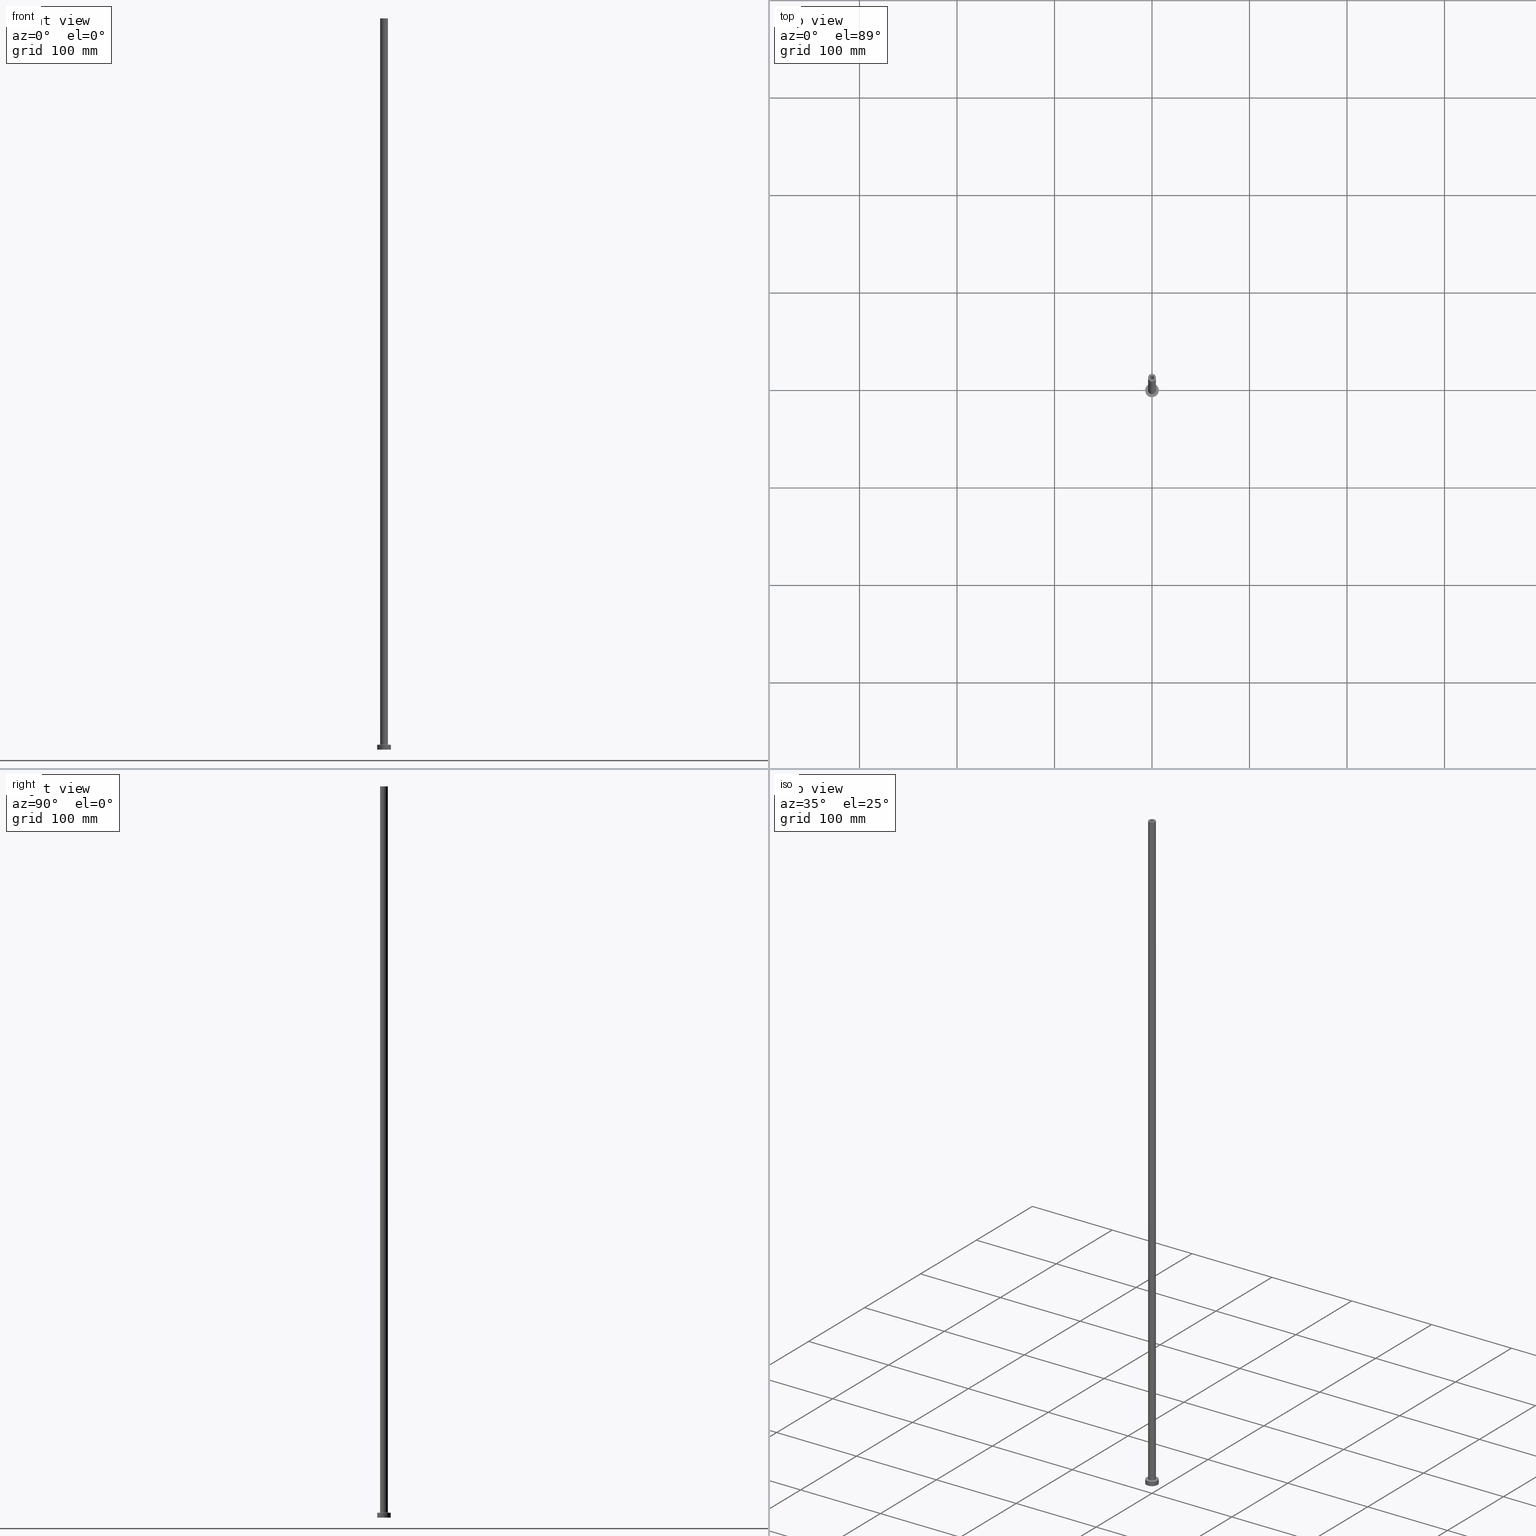
[diagram: canonical four-view strip — front | top / right | iso, engineering-drawing reading convention]
A machine part, canonical four-view strip (front | top / right | iso — engineering-drawing reading convention). The complete STEP part file that produces these views, byte-faithful:
ISO-10303-21;
HEADER;
FILE_DESCRIPTION (( 'STEP AP203' ),
    '1' );
FILE_NAME ('b233.STEP',
    '2023-02-13T17:29:18',
    ( '' ),
    ( '' ),
    'SwSTEP 2.0',
    'SolidWorks 2019',
    '' );
FILE_SCHEMA (( 'CONFIG_CONTROL_DESIGN' ));
ENDSEC;

DATA;
#1 = CARTESIAN_POINT ( 'NONE',  ( -4.000000000000000000, 0.000000000000000000, 750.0000000000000000 ) ) ;
#2 =( LENGTH_UNIT ( ) NAMED_UNIT ( * ) SI_UNIT ( .MILLI., .METRE. ) );
#3 = VECTOR ( 'NONE', #27, 1000.000000000000000 ) ;
#4 = ORIENTED_EDGE ( 'NONE', *, *, #289, .T. ) ;
#5 = CARTESIAN_POINT ( 'NONE',  ( 0.000000000000000000, 0.000000000000000000, 750.0000000000000000 ) ) ;
#6 = VERTEX_POINT ( 'NONE', #357 ) ;
#7 = EDGE_CURVE ( 'NONE', #142, #239, #150, .T. ) ;
#8 = AXIS2_PLACEMENT_3D ( 'NONE', #406, #13, #397 ) ;
#9 = VERTEX_POINT ( 'NONE', #180 ) ;
#10 = CARTESIAN_POINT ( 'NONE',  ( 0.000000000000000000, 0.000000000000000000, 705.0000000000000000 ) ) ;
#11 = ORIENTED_EDGE ( 'NONE', *, *, #430, .T. ) ;
#12 = CALENDAR_DATE ( 2023, 13, 2 ) ;
#13 = DIRECTION ( 'NONE',  ( 0.000000000000000000, 0.000000000000000000, -1.000000000000000000 ) ) ;
#14 = ORIENTED_EDGE ( 'NONE', *, *, #215, .T. ) ;
#15 = EDGE_CURVE ( 'NONE', #134, #222, #253, .T. ) ;
#16 = APPROVAL_STATUS ( 'not_yet_approved' ) ;
#17 = CIRCLE ( 'NONE', #304, 4.500000000000000888 ) ;
#18 = DIRECTION ( 'NONE',  ( 0.000000000000000000, 0.000000000000000000, 1.000000000000000000 ) ) ;
#19 = ORIENTED_EDGE ( 'NONE', *, *, #219, .F. ) ;
#20 = UNCERTAINTY_MEASURE_WITH_UNIT (LENGTH_MEASURE( 1.000000000000000082E-05 ), #2, 'distance_accuracy_value', 'NONE');
#21 = PERSON_AND_ORGANIZATION_ROLE ( 'creator' ) ;
#22 = DIRECTION ( 'NONE',  ( 1.000000000000000000, 0.000000000000000000, -0.000000000000000000 ) ) ;
#23 = CARTESIAN_POINT ( 'NONE',  ( -7.000000000000000000, 0.000000000000000000, 5.000000000000000000 ) ) ;
#24 = AXIS2_PLACEMENT_3D ( 'NONE', #156, #441, #243 ) ;
#25 = ORIENTED_EDGE ( 'NONE', *, *, #430, .F. ) ;
#26 = DIRECTION ( 'NONE',  ( -0.000000000000000000, -0.000000000000000000, -1.000000000000000000 ) ) ;
#27 = DIRECTION ( 'NONE',  ( -0.000000000000000000, -0.000000000000000000, -1.000000000000000000 ) ) ;
#28 = DATE_AND_TIME ( #206, #252 ) ;
#29 = CC_DESIGN_SECURITY_CLASSIFICATION ( #189, ( #241 ) ) ;
#30 = DIRECTION ( 'NONE',  ( -0.000000000000000000, -0.000000000000000000, -1.000000000000000000 ) ) ;
#31 = LINE ( 'NONE', #170, #261 ) ;
#32 = VECTOR ( 'NONE', #367, 1000.000000000000000 ) ;
#33 = ORIENTED_EDGE ( 'NONE', *, *, #329, .F. ) ;
#34 = EDGE_CURVE ( 'NONE', #345, #197, #182, .T. ) ;
#35 = DIRECTION ( 'NONE',  ( 0.000000000000000000, -1.000000000000000000, 0.000000000000000000 ) ) ;
#36 = VERTEX_POINT ( 'NONE', #178 ) ;
#37 = CIRCLE ( 'NONE', #305, 2.250000000000000000 ) ;
#38 = ORIENTED_EDGE ( 'NONE', *, *, #149, .F. ) ;
#39 = ORIENTED_EDGE ( 'NONE', *, *, #47, .F. ) ;
#40 = ORIENTED_EDGE ( 'NONE', *, *, #404, .F. ) ;
#41 = APPROVAL_DATE_TIME ( #140, #237 ) ;
#42 = CIRCLE ( 'NONE', #313, 4.000000000000000000 ) ;
#43 = DIRECTION ( 'NONE',  ( 0.000000000000000000, 0.000000000000000000, 1.000000000000000000 ) ) ;
#44 = CARTESIAN_POINT ( 'NONE',  ( 2.100000000000000089, 2.571758278209441957E-16, 750.0000000000000000 ) ) ;
#45 = APPLICATION_PROTOCOL_DEFINITION ( 'international standard', 'config_control_design', 1994, #340 ) ;
#46 = AXIS2_PLACEMENT_3D ( 'NONE', #187, #328, #432 ) ;
#47 = EDGE_CURVE ( 'NONE', #239, #202, #426, .T. ) ;
#48 = CARTESIAN_POINT ( 'NONE',  ( 0.000000000000000000, 0.000000000000000000, 5.000000000000000000 ) ) ;
#49 = ADVANCED_FACE ( 'NONE', ( #147 ), #229, .F. ) ;
#50 = VECTOR ( 'NONE', #270, 1000.000000000000000 ) ;
#51 = DIRECTION ( 'NONE',  ( 1.000000000000000000, 0.000000000000000000, 0.000000000000000000 ) ) ;
#52 = CYLINDRICAL_SURFACE ( 'NONE', #356, 2.100000000000000089 ) ;
#53 = DIRECTION ( 'NONE',  ( 1.000000000000000000, 0.000000000000000000, -0.000000000000000000 ) ) ;
#54 = ADVANCED_FACE ( 'NONE', ( #400 ), #268, .T. ) ;
#55 = ORIENTED_EDGE ( 'NONE', *, *, #181, .T. ) ;
#56 = APPROVAL_STATUS ( 'not_yet_approved' ) ;
#57 = DATE_AND_TIME ( #12, #68 ) ;
#58 = AXIS2_PLACEMENT_3D ( 'NONE', #230, #93, #364 ) ;
#59 = LINE ( 'NONE', #370, #32 ) ;
#60 = VERTEX_POINT ( 'NONE', #402 ) ;
#61 = APPROVAL ( #56, 'NEUR�EN�' ) ;
#62 = DIRECTION ( 'NONE',  ( 0.000000000000000000, 0.000000000000000000, 1.000000000000000000 ) ) ;
#63 = CARTESIAN_POINT ( 'NONE',  ( 0.000000000000000000, 0.000000000000000000, 705.0000000000000000 ) ) ;
#64 = ORIENTED_EDGE ( 'NONE', *, *, #7, .F. ) ;
#65 = ORIENTED_EDGE ( 'NONE', *, *, #88, .T. ) ;
#66 = FACE_OUTER_BOUND ( 'NONE', #456, .T. ) ;
#67 = AXIS2_PLACEMENT_3D ( 'NONE', #102, #224, #391 ) ;
#68 = LOCAL_TIME ( 18, 29, 18.00000000000000000, #332 ) ;
#69 = EDGE_LOOP ( 'NONE', ( #401, #19 ) ) ;
#70 = VERTEX_POINT ( 'NONE', #398 ) ;
#71 = PRODUCT_RELATED_PRODUCT_CATEGORY ( 'detail', '', ( #245 ) ) ;
#72 = VECTOR ( 'NONE', #450, 1000.000000000000000 ) ;
#73 = AXIS2_PLACEMENT_3D ( 'NONE', #428, #80, #223 ) ;
#74 = CC_DESIGN_DATE_AND_TIME_ASSIGNMENT ( #438, #115, ( #244 ) ) ;
#75 = EDGE_LOOP ( 'NONE', ( #77, #375 ) ) ;
#76 = VECTOR ( 'NONE', #259, 1000.000000000000000 ) ;
#77 = ORIENTED_EDGE ( 'NONE', *, *, #329, .T. ) ;
#78 = AXIS2_PLACEMENT_3D ( 'NONE', #286, #431, #319 ) ;
#79 = APPROVAL_PERSON_ORGANIZATION ( #110, #61, #193 ) ;
#80 = DIRECTION ( 'NONE',  ( 0.000000000000000000, 0.000000000000000000, 1.000000000000000000 ) ) ;
#81 = APPLICATION_PROTOCOL_DEFINITION ( 'international standard', 'config_control_design', 1994, #155 ) ;
#82 = DIRECTION ( 'NONE',  ( 0.000000000000000000, 0.000000000000000000, -1.000000000000000000 ) ) ;
#83 = COORDINATED_UNIVERSAL_TIME_OFFSET ( 1, 0, .AHEAD. ) ;
#84 = FACE_OUTER_BOUND ( 'NONE', #442, .T. ) ;
#85 = PERSON_AND_ORGANIZATION ( #393, #137 ) ;
#86 = LINE ( 'NONE', #433, #50 ) ;
#87 = CC_DESIGN_PERSON_AND_ORGANIZATION_ASSIGNMENT ( #263, #443, ( #241 ) ) ;
#88 = EDGE_CURVE ( 'NONE', #142, #250, #59, .T. ) ;
#89 = CARTESIAN_POINT ( 'NONE',  ( 0.000000000000000000, 0.000000000000000000, 750.0000000000000000 ) ) ;
#90 = AXIS2_PLACEMENT_3D ( 'NONE', #105, #255, #362 ) ;
#91 = CARTESIAN_POINT ( 'NONE',  ( 0.000000000000000000, 0.000000000000000000, 5.499999999999949374 ) ) ;
#92 = AXIS2_PLACEMENT_3D ( 'NONE', #359, #317, #384 ) ;
#93 = DIRECTION ( 'NONE',  ( 0.000000000000000000, 0.000000000000000000, 1.000000000000000000 ) ) ;
#94 = EDGE_LOOP ( 'NONE', ( #192, #235, #33, #458 ) ) ;
#95 = DIRECTION ( 'NONE',  ( -1.000000000000000000, 0.000000000000000000, 0.000000000000000000 ) ) ;
#96 = DIRECTION ( 'NONE',  ( 0.000000000000000000, 0.000000000000000000, 1.000000000000000000 ) ) ;
#97 = AXIS2_PLACEMENT_3D ( 'NONE', #366, #435, #22 ) ;
#98 = EDGE_CURVE ( 'NONE', #197, #6, #347, .T. ) ;
#99 = CARTESIAN_POINT ( 'NONE',  ( 0.000000000000000000, 0.000000000000000000, 5.000000000000000000 ) ) ;
#100 = ORIENTED_EDGE ( 'NONE', *, *, #15, .T. ) ;
#101 = CIRCLE ( 'NONE', #363, 2.100000000000000089 ) ;
#102 = CARTESIAN_POINT ( 'NONE',  ( 0.000000000000000000, 0.000000000000000000, 705.0000000000000000 ) ) ;
#103 = EDGE_LOOP ( 'NONE', ( #422, #209, #100, #271 ) ) ;
#104 = FACE_OUTER_BOUND ( 'NONE', #108, .T. ) ;
#105 = CARTESIAN_POINT ( 'NONE',  ( 0.000000000000000000, 0.000000000000000000, 711.3639610306788654 ) ) ;
#106 = CARTESIAN_POINT ( 'NONE',  ( 2.100000000000000089, 2.571758278209441957E-16, 705.0000000000000000 ) ) ;
#107 = CC_DESIGN_PERSON_AND_ORGANIZATION_ASSIGNMENT ( #300, #120, ( #189 ) ) ;
#108 = EDGE_LOOP ( 'NONE', ( #225, #299 ) ) ;
#109 = AXIS2_PLACEMENT_3D ( 'NONE', #203, #373, #412 ) ;
#110 = PERSON_AND_ORGANIZATION ( #393, #137 ) ;
#111 = PLANE ( 'NONE',  #439 ) ;
#112 = ORIENTED_EDGE ( 'NONE', *, *, #114, .T. ) ;
#113 = DIRECTION ( 'NONE',  ( -1.000000000000000000, 0.000000000000000000, 0.000000000000000000 ) ) ;
#114 = EDGE_CURVE ( 'NONE', #134, #70, #403, .T. ) ;
#115 = DATE_TIME_ROLE ( 'creation_date' ) ;
#116 = CARTESIAN_POINT ( 'NONE',  ( -4.000000000000000000, 0.000000000000000000, 750.0000000000000000 ) ) ;
#117 = DIRECTION ( 'NONE',  ( 1.000000000000000000, 0.000000000000000000, 0.000000000000000000 ) ) ;
#118 = CALENDAR_DATE ( 2023, 13, 2 ) ;
#119 = ORIENTED_EDGE ( 'NONE', *, *, #98, .F. ) ;
#120 = PERSON_AND_ORGANIZATION_ROLE ( 'classification_officer' ) ;
#121 = PLANE ( 'NONE',  #97 ) ;
#122 = AXIS2_PLACEMENT_3D ( 'NONE', #278, #96, #123 ) ;
#123 = DIRECTION ( 'NONE',  ( 1.000000000000000000, 0.000000000000000000, 0.000000000000000000 ) ) ;
#124 = ADVANCED_FACE ( 'NONE', ( #295, #344 ), #262, .F. ) ;
#125 = CARTESIAN_POINT ( 'NONE',  ( 0.000000000000000000, 0.000000000000000000, 0.000000000000000000 ) ) ;
#126 = DIRECTION ( 'NONE',  ( 1.224646799147353207E-16, 1.000000000000000000, -0.000000000000000000 ) ) ;
#127 = EDGE_LOOP ( 'NONE', ( #39, #14, #65, #152 ) ) ;
#128 = CALENDAR_DATE ( 2023, 13, 2 ) ;
#129 = CIRCLE ( 'NONE', #109, 7.000000000000000000 ) ;
#130 = LOCAL_TIME ( 18, 29, 18.00000000000000000, #290 ) ;
#131 = ORIENTED_EDGE ( 'NONE', *, *, #141, .T. ) ;
#132 = CARTESIAN_POINT ( 'NONE',  ( 0.000000000000000000, 0.000000000000000000, 5.000000000000000000 ) ) ;
#133 = VECTOR ( 'NONE', #139, 1000.000000000000000 ) ;
#134 = VERTEX_POINT ( 'NONE', #23 ) ;
#135 = CARTESIAN_POINT ( 'NONE',  ( 0.000000000000000000, 0.000000000000000000, 5.499999999999949374 ) ) ;
#136 = FACE_OUTER_BOUND ( 'NONE', #127, .T. ) ;
#137 = ORGANIZATION ( 'NEUR�EN�', 'NEUR�EN�', '' ) ;
#138 = ORIENTED_EDGE ( 'NONE', *, *, #395, .F. ) ;
#139 = DIRECTION ( 'NONE',  ( -0.000000000000000000, -0.000000000000000000, -1.000000000000000000 ) ) ;
#140 = DATE_AND_TIME ( #128, #231 ) ;
#141 = EDGE_CURVE ( 'NONE', #70, #427, #163, .T. ) ;
#142 = VERTEX_POINT ( 'NONE', #408 ) ;
#143 = DIRECTION ( 'NONE',  ( 0.000000000000000000, 0.000000000000000000, 1.000000000000000000 ) ) ;
#144 = ORIENTED_EDGE ( 'NONE', *, *, #289, .F. ) ;
#145 = DATE_AND_TIME ( #118, #130 ) ;
#146 = DIRECTION ( 'NONE',  ( -0.000000000000000000, -0.000000000000000000, -1.000000000000000000 ) ) ;
#147 = FACE_OUTER_BOUND ( 'NONE', #337, .T. ) ;
#148 = CC_DESIGN_PERSON_AND_ORGANIZATION_ASSIGNMENT ( #227, #434, ( #244 ) ) ;
#149 = EDGE_CURVE ( 'NONE', #330, #9, #226, .T. ) ;
#150 = CIRCLE ( 'NONE', #46, 2.100000000000000089 ) ;
#151 = CYLINDRICAL_SURFACE ( 'NONE', #455, 2.100000000000000089 ) ;
#152 = ORIENTED_EDGE ( 'NONE', *, *, #378, .F. ) ;
#153 = APPROVAL_DATE_TIME ( #145, #389 ) ;
#154 = FACE_BOUND ( 'NONE', #326, .T. ) ;
#155 = APPLICATION_CONTEXT ( 'configuration controlled 3d designs of mechanical parts and assemblies' ) ;
#156 = CARTESIAN_POINT ( 'NONE',  ( 0.000000000000000000, 0.000000000000000000, 705.0000000000000000 ) ) ;
#157 = EDGE_LOOP ( 'NONE', ( #276, #392, #11, #144 ) ) ;
#158 = AXIS2_PLACEMENT_3D ( 'NONE', #312, #35, #380 ) ;
#159 = DIRECTION ( 'NONE',  ( 1.000000000000000000, 0.000000000000000000, 0.000000000000000000 ) ) ;
#160 = ORIENTED_EDGE ( 'NONE', *, *, #208, .F. ) ;
#161 = SECURITY_CLASSIFICATION_LEVEL ( 'unclassified' ) ;
#162 = CARTESIAN_POINT ( 'NONE',  ( 4.500000000000000888, 0.000000000000000000, 4.999999999999975131 ) ) ;
#163 = LINE ( 'NONE', #301, #3 ) ;
#164 = CYLINDRICAL_SURFACE ( 'NONE', #288, 4.000000000000000000 ) ;
#165 = CIRCLE ( 'NONE', #67, 2.250000000000000000 ) ;
#166 = DATE_TIME_ROLE ( 'classification_date' ) ;
#167 = PRODUCT_DEFINITION_SHAPE ( 'NONE', 'NONE',  #244 ) ;
#168 = CC_DESIGN_DATE_AND_TIME_ASSIGNMENT ( #28, #166, ( #189 ) ) ;
#169 = CARTESIAN_POINT ( 'NONE',  ( 0.000000000000000000, 0.000000000000000000, 0.000000000000000000 ) ) ;
#170 = CARTESIAN_POINT ( 'NONE',  ( -2.250000000000000000, 0.000000000000000000, 711.3639610306788654 ) ) ;
#171 = ADVANCED_FACE ( 'NONE', ( #381 ), #447, .T. ) ;
#172 = DIRECTION ( 'NONE',  ( -1.000000000000000000, 0.000000000000000000, 0.000000000000000000 ) ) ;
#173 = ADVANCED_BREP_SHAPE_REPRESENTATION ( 'b233', ( #452, #73 ), #274 ) ;
#174 = ORIENTED_EDGE ( 'NONE', *, *, #188, .T. ) ;
#175 = CC_DESIGN_PERSON_AND_ORGANIZATION_ASSIGNMENT ( #216, #351, ( #245 ) ) ;
#176 = EDGE_LOOP ( 'NONE', ( #38, #160 ) ) ;
#177 = CARTESIAN_POINT ( 'NONE',  ( 0.000000000000000000, 0.000000000000000000, 750.0000000000000000 ) ) ;
#178 = CARTESIAN_POINT ( 'NONE',  ( 4.000000000000000000, 4.898587196589412829E-16, 750.0000000000000000 ) ) ;
#179 = DIRECTION ( 'NONE',  ( 0.000000000000000000, 0.000000000000000000, 1.000000000000000000 ) ) ;
#180 = CARTESIAN_POINT ( 'NONE',  ( 2.250000000000000000, 2.755455298081543792E-16, 705.0000000000000000 ) ) ;
#181 = EDGE_CURVE ( 'NONE', #330, #60, #31, .T. ) ;
#182 = LINE ( 'NONE', #1, #133 ) ;
#183 =( NAMED_UNIT ( * ) PLANE_ANGLE_UNIT ( ) SI_UNIT ( $, .RADIAN. ) );
#184 = CARTESIAN_POINT ( 'NONE',  ( -2.100000000000000089, 0.000000000000000000, 705.0000000000000000 ) ) ;
#185 = ORIENTED_EDGE ( 'NONE', *, *, #215, .F. ) ;
#186 = CIRCLE ( 'NONE', #321, 7.000000000000000000 ) ;
#187 = CARTESIAN_POINT ( 'NONE',  ( 0.000000000000000000, 0.000000000000000000, 750.0000000000000000 ) ) ;
#188 = EDGE_CURVE ( 'NONE', #197, #282, #240, .T. ) ;
#189 = SECURITY_CLASSIFICATION ( '', '', #161 ) ;
#190 = DIRECTION ( 'NONE',  ( -0.000000000000000000, -0.000000000000000000, -1.000000000000000000 ) ) ;
#191 = DIRECTION ( 'NONE',  ( 1.000000000000000000, 0.000000000000000000, 0.000000000000000000 ) ) ;
#192 = ORIENTED_EDGE ( 'NONE', *, *, #7, .T. ) ;
#193 = APPROVAL_ROLE ( '' ) ;
#194 = VECTOR ( 'NONE', #82, 1000.000000000000000 ) ;
#195 = CARTESIAN_POINT ( 'NONE',  ( 0.000000000000000000, 0.000000000000000000, 750.0000000000000000 ) ) ;
#196 = DIRECTION ( 'NONE',  ( -1.000000000000000000, 0.000000000000000000, 0.000000000000000000 ) ) ;
#197 = VERTEX_POINT ( 'NONE', #355 ) ;
#198 = DIRECTION ( 'NONE',  ( 0.000000000000000000, 0.000000000000000000, 1.000000000000000000 ) ) ;
#199 = ORIENTED_EDGE ( 'NONE', *, *, #181, .F. ) ;
#200 = CARTESIAN_POINT ( 'NONE',  ( -4.500000000000000888, 5.510910596163088569E-16, 4.999999999999975131 ) ) ;
#201 = CARTESIAN_POINT ( 'NONE',  ( 0.000000000000000000, 0.000000000000000000, 5.000000000000000000 ) ) ;
#202 = VERTEX_POINT ( 'NONE', #106 ) ;
#203 = CARTESIAN_POINT ( 'NONE',  ( 0.000000000000000000, 0.000000000000000000, 5.000000000000000000 ) ) ;
#204 = ORIENTED_EDGE ( 'NONE', *, *, #15, .F. ) ;
#205 = DESIGN_CONTEXT ( 'detailed design', #155, 'design' ) ;
#206 = CALENDAR_DATE ( 2023, 13, 2 ) ;
#207 = DIRECTION ( 'NONE',  ( -0.000000000000000000, -0.000000000000000000, -1.000000000000000000 ) ) ;
#208 = EDGE_CURVE ( 'NONE', #9, #330, #165, .T. ) ;
#209 = ORIENTED_EDGE ( 'NONE', *, *, #114, .F. ) ;
#210 = DIRECTION ( 'NONE',  ( -1.000000000000000000, 0.000000000000000000, 0.000000000000000000 ) ) ;
#211 = PERSON_AND_ORGANIZATION ( #393, #137 ) ;
#212 = CARTESIAN_POINT ( 'NONE',  ( 2.250000000000000000, 2.755455298081543792E-16, 0.000000000000000000 ) ) ;
#213 = AXIS2_PLACEMENT_3D ( 'NONE', #63, #341, #53 ) ;
#214 = EDGE_LOOP ( 'NONE', ( #40, #409 ) ) ;
#215 = EDGE_CURVE ( 'NONE', #239, #142, #327, .T. ) ;
#216 = PERSON_AND_ORGANIZATION ( #393, #137 ) ;
#217 = TOROIDAL_SURFACE ( 'NONE', #122, 4.500000000000000888, 0.5000000000000000000 ) ;
#218 = CC_DESIGN_APPROVAL ( #389, ( #244 ) ) ;
#219 = EDGE_CURVE ( 'NONE', #427, #222, #186, .T. ) ;
#220 = ORIENTED_EDGE ( 'NONE', *, *, #149, .T. ) ;
#221 = CIRCLE ( 'NONE', #257, 4.500000000000000888 ) ;
#222 = VERTEX_POINT ( 'NONE', #421 ) ;
#223 = DIRECTION ( 'NONE',  ( 1.000000000000000000, 0.000000000000000000, 0.000000000000000000 ) ) ;
#224 = DIRECTION ( 'NONE',  ( 0.000000000000000000, 0.000000000000000000, 1.000000000000000000 ) ) ;
#225 = ORIENTED_EDGE ( 'NONE', *, *, #323, .T. ) ;
#226 = CIRCLE ( 'NONE', #24, 2.250000000000000000 ) ;
#227 = PERSON_AND_ORGANIZATION ( #393, #137 ) ;
#228 = DIRECTION ( 'NONE',  ( 0.000000000000000000, 0.000000000000000000, 1.000000000000000000 ) ) ;
#229 = CYLINDRICAL_SURFACE ( 'NONE', #90, 2.250000000000000000 ) ;
#230 = CARTESIAN_POINT ( 'NONE',  ( 0.000000000000000000, 0.000000000000000000, 5.000000000000000000 ) ) ;
#231 = LOCAL_TIME ( 18, 29, 18.00000000000000000, #372 ) ;
#232 = APPROVAL_ROLE ( '' ) ;
#233 = DIRECTION ( 'NONE',  ( 1.000000000000000000, 0.000000000000000000, 0.000000000000000000 ) ) ;
#234 = CARTESIAN_POINT ( 'NONE',  ( 0.000000000000000000, 0.000000000000000000, 750.0000000000000000 ) ) ;
#235 = ORIENTED_EDGE ( 'NONE', *, *, #47, .T. ) ;
#236 = DIRECTION ( 'NONE',  ( 0.000000000000000000, 0.000000000000000000, -1.000000000000000000 ) ) ;
#237 = APPROVAL ( #310, 'NEUR�EN�' ) ;
#238 = FACE_OUTER_BOUND ( 'NONE', #349, .T. ) ;
#239 = VERTEX_POINT ( 'NONE', #44 ) ;
#240 = CIRCLE ( 'NONE', #382, 0.5000000000000004441 ) ;
#241 = PRODUCT_DEFINITION_FORMATION_WITH_SPECIFIED_SOURCE ( 'LIBOVOLN�', '', #245, .NOT_KNOWN. ) ;
#242 = CARTESIAN_POINT ( 'NONE',  ( 0.000000000000000000, 0.000000000000000000, 750.0000000000000000 ) ) ;
#243 = DIRECTION ( 'NONE',  ( 1.000000000000000000, 0.000000000000000000, 0.000000000000000000 ) ) ;
#244 = PRODUCT_DEFINITION ( 'NEZN�M�', '', #241, #205 ) ;
#245 = PRODUCT ( 'b233', 'b233', '', ( #325 ) ) ;
#246 = CIRCLE ( 'NONE', #158, 0.5000000000000004441 ) ;
#247 = FACE_OUTER_BOUND ( 'NONE', #285, .T. ) ;
#248 = ORIENTED_EDGE ( 'NONE', *, *, #254, .T. ) ;
#249 = ORIENTED_EDGE ( 'NONE', *, *, #323, .F. ) ;
#250 = VERTEX_POINT ( 'NONE', #184 ) ;
#251 = EDGE_CURVE ( 'NONE', #36, #345, #283, .T. ) ;
#252 = LOCAL_TIME ( 18, 29, 18.00000000000000000, #267 ) ;
#253 = LINE ( 'NONE', #322, #76 ) ;
#254 = EDGE_CURVE ( 'NONE', #6, #197, #379, .T. ) ;
#255 = DIRECTION ( 'NONE',  ( 0.000000000000000000, 0.000000000000000000, -1.000000000000000000 ) ) ;
#256 = SHAPE_DEFINITION_REPRESENTATION ( #167, #173 ) ;
#257 = AXIS2_PLACEMENT_3D ( 'NONE', #333, #146, #51 ) ;
#258 = CC_DESIGN_APPROVAL ( #237, ( #189 ) ) ;
#259 = DIRECTION ( 'NONE',  ( -0.000000000000000000, -0.000000000000000000, -1.000000000000000000 ) ) ;
#260 = CYLINDRICAL_SURFACE ( 'NONE', #8, 2.250000000000000000 ) ;
#261 = VECTOR ( 'NONE', #308, 1000.000000000000000 ) ;
#262 = PLANE ( 'NONE',  #213 ) ;
#263 = PERSON_AND_ORGANIZATION ( #393, #137 ) ;
#264 = DIRECTION ( 'NONE',  ( 0.000000000000000000, 0.000000000000000000, 1.000000000000000000 ) ) ;
#265 = ADVANCED_FACE ( 'NONE', ( #425, #104 ), #111, .T. ) ;
#266 = AXIS2_PLACEMENT_3D ( 'NONE', #91, #334, #191 ) ;
#267 = COORDINATED_UNIVERSAL_TIME_OFFSET ( 1, 0, .AHEAD. ) ;
#268 = CYLINDRICAL_SURFACE ( 'NONE', #417, 4.000000000000000000 ) ;
#269 = ORIENTED_EDGE ( 'NONE', *, *, #306, .F. ) ;
#270 = DIRECTION ( 'NONE',  ( 0.000000000000000000, 0.000000000000000000, -1.000000000000000000 ) ) ;
#271 = ORIENTED_EDGE ( 'NONE', *, *, #331, .T. ) ;
#272 = AXIS2_PLACEMENT_3D ( 'NONE', #99, #30, #95 ) ;
#273 = ADVANCED_FACE ( 'NONE', ( #136 ), #151, .F. ) ;
#274 =( GEOMETRIC_REPRESENTATION_CONTEXT ( 3 ) GLOBAL_UNCERTAINTY_ASSIGNED_CONTEXT ( ( #20 ) ) GLOBAL_UNIT_ASSIGNED_CONTEXT ( ( #2, #183, #423 ) ) REPRESENTATION_CONTEXT ( 'NONE', 'WORKASPACE' ) );
#275 = CYLINDRICAL_SURFACE ( 'NONE', #272, 7.000000000000000000 ) ;
#276 = ORIENTED_EDGE ( 'NONE', *, *, #188, .F. ) ;
#277 = DIRECTION ( 'NONE',  ( 1.000000000000000000, 0.000000000000000000, 0.000000000000000000 ) ) ;
#278 = CARTESIAN_POINT ( 'NONE',  ( 0.000000000000000000, 0.000000000000000000, 5.499999999999949374 ) ) ;
#279 = ORIENTED_EDGE ( 'NONE', *, *, #318, .T. ) ;
#280 = FACE_OUTER_BOUND ( 'NONE', #449, .T. ) ;
#281 = DIRECTION ( 'NONE',  ( 0.000000000000000000, 0.000000000000000000, -1.000000000000000000 ) ) ;
#282 = VERTEX_POINT ( 'NONE', #200 ) ;
#283 = CIRCLE ( 'NONE', #287, 4.000000000000000000 ) ;
#284 = DIRECTION ( 'NONE',  ( 1.000000000000000000, 0.000000000000000000, 0.000000000000000000 ) ) ;
#285 = EDGE_LOOP ( 'NONE', ( #354, #410, #248, #460 ) ) ;
#286 = CARTESIAN_POINT ( 'NONE',  ( 0.000000000000000000, 0.000000000000000000, 5.499999999999949374 ) ) ;
#287 = AXIS2_PLACEMENT_3D ( 'NONE', #5, #143, #386 ) ;
#288 = AXIS2_PLACEMENT_3D ( 'NONE', #303, #348, #172 ) ;
#289 = EDGE_CURVE ( 'NONE', #282, #342, #221, .T. ) ;
#290 = COORDINATED_UNIVERSAL_TIME_OFFSET ( 1, 0, .AHEAD. ) ;
#291 = DIRECTION ( 'NONE',  ( 1.000000000000000000, 0.000000000000000000, 0.000000000000000000 ) ) ;
#292 = ADVANCED_FACE ( 'NONE', ( #238 ), #260, .F. ) ;
#293 = PERSON_AND_ORGANIZATION ( #393, #137 ) ;
#294 = AXIS2_PLACEMENT_3D ( 'NONE', #336, #18, #233 ) ;
#295 = FACE_BOUND ( 'NONE', #75, .T. ) ;
#296 = LOCAL_TIME ( 18, 29, 18.00000000000000000, #83 ) ;
#297 = CALENDAR_DATE ( 2023, 13, 2 ) ;
#298 = FACE_OUTER_BOUND ( 'NONE', #69, .T. ) ;
#299 = ORIENTED_EDGE ( 'NONE', *, *, #251, .T. ) ;
#300 = PERSON_AND_ORGANIZATION ( #393, #137 ) ;
#301 = CARTESIAN_POINT ( 'NONE',  ( 7.000000000000000000, 8.572527594031473190E-16, 5.000000000000000000 ) ) ;
#302 = EDGE_LOOP ( 'NONE', ( #64, #185 ) ) ;
#303 = CARTESIAN_POINT ( 'NONE',  ( 0.000000000000000000, 0.000000000000000000, 750.0000000000000000 ) ) ;
#304 = AXIS2_PLACEMENT_3D ( 'NONE', #48, #190, #444 ) ;
#305 = AXIS2_PLACEMENT_3D ( 'NONE', #125, #416, #413 ) ;
#306 = EDGE_CURVE ( 'NONE', #9, #368, #86, .T. ) ;
#307 = DIRECTION ( 'NONE',  ( -1.000000000000000000, 0.000000000000000000, 0.000000000000000000 ) ) ;
#308 = DIRECTION ( 'NONE',  ( 0.000000000000000000, 0.000000000000000000, -1.000000000000000000 ) ) ;
#309 = ADVANCED_FACE ( 'NONE', ( #154, #84 ), #440, .T. ) ;
#310 = APPROVAL_STATUS ( 'not_yet_approved' ) ;
#311 = CC_DESIGN_PERSON_AND_ORGANIZATION_ASSIGNMENT ( #293, #21, ( #241 ) ) ;
#312 = CARTESIAN_POINT ( 'NONE',  ( 4.500000000000000888, 0.000000000000000000, 5.499999999999949374 ) ) ;
#313 = AXIS2_PLACEMENT_3D ( 'NONE', #89, #198, #159 ) ;
#314 = AXIS2_PLACEMENT_3D ( 'NONE', #169, #26, #277 ) ;
#315 = CARTESIAN_POINT ( 'NONE',  ( 0.000000000000000000, 0.000000000000000000, 705.0000000000000000 ) ) ;
#316 = FACE_OUTER_BOUND ( 'NONE', #157, .T. ) ;
#317 = DIRECTION ( 'NONE',  ( 0.000000000000000000, 0.000000000000000000, 1.000000000000000000 ) ) ;
#318 = EDGE_CURVE ( 'NONE', #342, #282, #17, .T. ) ;
#319 = DIRECTION ( 'NONE',  ( 1.000000000000000000, 0.000000000000000000, 0.000000000000000000 ) ) ;
#320 = EDGE_LOOP ( 'NONE', ( #138, #249, #453, #335 ) ) ;
#321 = AXIS2_PLACEMENT_3D ( 'NONE', #353, #179, #388 ) ;
#322 = CARTESIAN_POINT ( 'NONE',  ( -7.000000000000000000, 0.000000000000000000, 5.000000000000000000 ) ) ;
#323 = EDGE_CURVE ( 'NONE', #345, #36, #42, .T. ) ;
#324 = ORIENTED_EDGE ( 'NONE', *, *, #208, .T. ) ;
#325 = MECHANICAL_CONTEXT ( 'NONE', #340, 'mechanical' ) ;
#326 = EDGE_LOOP ( 'NONE', ( #279, #4 ) ) ;
#327 = CIRCLE ( 'NONE', #92, 2.100000000000000089 ) ;
#328 = DIRECTION ( 'NONE',  ( 0.000000000000000000, 0.000000000000000000, 1.000000000000000000 ) ) ;
#329 = EDGE_CURVE ( 'NONE', #250, #202, #101, .T. ) ;
#330 = VERTEX_POINT ( 'NONE', #369 ) ;
#331 = EDGE_CURVE ( 'NONE', #222, #427, #419, .T. ) ;
#332 = COORDINATED_UNIVERSAL_TIME_OFFSET ( 1, 0, .AHEAD. ) ;
#333 = CARTESIAN_POINT ( 'NONE',  ( 0.000000000000000000, 0.000000000000000000, 5.000000000000000000 ) ) ;
#334 = DIRECTION ( 'NONE',  ( 0.000000000000000000, 0.000000000000000000, 1.000000000000000000 ) ) ;
#335 = ORIENTED_EDGE ( 'NONE', *, *, #98, .T. ) ;
#336 = CARTESIAN_POINT ( 'NONE',  ( 0.000000000000000000, 0.000000000000000000, 0.000000000000000000 ) ) ;
#337 = EDGE_LOOP ( 'NONE', ( #269, #324, #55, #437 ) ) ;
#338 = APPROVAL_DATE_TIME ( #57, #61 ) ;
#339 = ADVANCED_FACE ( 'NONE', ( #371, #298 ), #121, .F. ) ;
#340 = APPLICATION_CONTEXT ( 'configuration controlled 3d designs of mechanical parts and assemblies' ) ;
#341 = DIRECTION ( 'NONE',  ( 0.000000000000000000, 0.000000000000000000, 1.000000000000000000 ) ) ;
#342 = VERTEX_POINT ( 'NONE', #162 ) ;
#343 = LINE ( 'NONE', #376, #72 ) ;
#344 = FACE_OUTER_BOUND ( 'NONE', #176, .T. ) ;
#345 = VERTEX_POINT ( 'NONE', #116 ) ;
#346 = ADVANCED_FACE ( 'NONE', ( #399 ), #52, .F. ) ;
#347 = CIRCLE ( 'NONE', #266, 4.000000000000000000 ) ;
#348 = DIRECTION ( 'NONE',  ( -0.000000000000000000, -0.000000000000000000, -1.000000000000000000 ) ) ;
#349 = EDGE_LOOP ( 'NONE', ( #220, #387, #445, #199 ) ) ;
#350 = CIRCLE ( 'NONE', #407, 2.100000000000000089 ) ;
#351 = PERSON_AND_ORGANIZATION_ROLE ( 'design_owner' ) ;
#352 = ORIENTED_EDGE ( 'NONE', *, *, #361, .F. ) ;
#353 = CARTESIAN_POINT ( 'NONE',  ( 0.000000000000000000, 0.000000000000000000, 0.000000000000000000 ) ) ;
#354 = ORIENTED_EDGE ( 'NONE', *, *, #251, .F. ) ;
#355 = CARTESIAN_POINT ( 'NONE',  ( -4.000000000000000000, 0.000000000000000000, 5.499999999999949374 ) ) ;
#356 = AXIS2_PLACEMENT_3D ( 'NONE', #195, #281, #307 ) ;
#357 = CARTESIAN_POINT ( 'NONE',  ( 4.000000000000000000, 4.898587196589412829E-16, 5.499999999999949374 ) ) ;
#358 = ADVANCED_FACE ( 'NONE', ( #280 ), #275, .T. ) ;
#359 = CARTESIAN_POINT ( 'NONE',  ( 0.000000000000000000, 0.000000000000000000, 750.0000000000000000 ) ) ;
#360 = DIRECTION ( 'NONE',  ( 1.000000000000000000, 0.000000000000000000, -0.000000000000000000 ) ) ;
#361 = EDGE_CURVE ( 'NONE', #70, #134, #129, .T. ) ;
#362 = DIRECTION ( 'NONE',  ( -1.000000000000000000, 0.000000000000000000, 0.000000000000000000 ) ) ;
#363 = AXIS2_PLACEMENT_3D ( 'NONE', #10, #264, #291 ) ;
#364 = DIRECTION ( 'NONE',  ( 1.000000000000000000, 0.000000000000000000, -0.000000000000000000 ) ) ;
#365 = AXIS2_PLACEMENT_3D ( 'NONE', #135, #43, #284 ) ;
#366 = CARTESIAN_POINT ( 'NONE',  ( 0.000000000000000000, 0.000000000000000000, 0.000000000000000000 ) ) ;
#367 = DIRECTION ( 'NONE',  ( 0.000000000000000000, 0.000000000000000000, -1.000000000000000000 ) ) ;
#368 = VERTEX_POINT ( 'NONE', #212 ) ;
#369 = CARTESIAN_POINT ( 'NONE',  ( -2.250000000000000000, 0.000000000000000000, 705.0000000000000000 ) ) ;
#370 = CARTESIAN_POINT ( 'NONE',  ( -2.100000000000000089, 0.000000000000000000, 750.0000000000000000 ) ) ;
#371 = FACE_BOUND ( 'NONE', #214, .T. ) ;
#372 = COORDINATED_UNIVERSAL_TIME_OFFSET ( 1, 0, .AHEAD. ) ;
#373 = DIRECTION ( 'NONE',  ( 0.000000000000000000, 0.000000000000000000, 1.000000000000000000 ) ) ;
#374 = DIRECTION ( 'NONE',  ( -0.000000000000000000, -0.000000000000000000, -1.000000000000000000 ) ) ;
#375 = ORIENTED_EDGE ( 'NONE', *, *, #378, .T. ) ;
#376 = CARTESIAN_POINT ( 'NONE',  ( 4.000000000000000000, 4.898587196589412829E-16, 750.0000000000000000 ) ) ;
#377 = DIRECTION ( 'NONE',  ( 1.000000000000000000, 0.000000000000000000, 0.000000000000000000 ) ) ;
#378 = EDGE_CURVE ( 'NONE', #202, #250, #350, .T. ) ;
#379 = CIRCLE ( 'NONE', #78, 4.000000000000000000 ) ;
#380 = DIRECTION ( 'NONE',  ( 0.000000000000000000, 0.000000000000000000, -1.000000000000000000 ) ) ;
#381 = FACE_OUTER_BOUND ( 'NONE', #103, .T. ) ;
#382 = AXIS2_PLACEMENT_3D ( 'NONE', #451, #126, #414 ) ;
#383 = CIRCLE ( 'NONE', #314, 2.250000000000000000 ) ;
#384 = DIRECTION ( 'NONE',  ( 1.000000000000000000, 0.000000000000000000, 0.000000000000000000 ) ) ;
#385 = CLOSED_SHELL ( 'NONE', ( #346, #292, #396, #424, #358, #171, #309, #339, #54, #265, #461, #49, #124, #273 ) ) ;
#386 = DIRECTION ( 'NONE',  ( 1.000000000000000000, 0.000000000000000000, 0.000000000000000000 ) ) ;
#387 = ORIENTED_EDGE ( 'NONE', *, *, #306, .T. ) ;
#388 = DIRECTION ( 'NONE',  ( 1.000000000000000000, 0.000000000000000000, 0.000000000000000000 ) ) ;
#389 = APPROVAL ( #16, 'NEUR�EN�' ) ;
#390 = ORIENTED_EDGE ( 'NONE', *, *, #361, .T. ) ;
#391 = DIRECTION ( 'NONE',  ( 1.000000000000000000, 0.000000000000000000, 0.000000000000000000 ) ) ;
#392 = ORIENTED_EDGE ( 'NONE', *, *, #254, .F. ) ;
#393 = PERSON ( 'NEUR�EN�', 'NEUR�EN�', 'NEUR�EN�', ('NEUR�EN�'), ('NEUR�EN�'), ('NEUR�EN�') ) ;
#394 = CARTESIAN_POINT ( 'NONE',  ( 2.100000000000000089, 2.571758278209441957E-16, 750.0000000000000000 ) ) ;
#395 = EDGE_CURVE ( 'NONE', #36, #6, #343, .T. ) ;
#396 = ADVANCED_FACE ( 'NONE', ( #66 ), #217, .F. ) ;
#397 = DIRECTION ( 'NONE',  ( -1.000000000000000000, 0.000000000000000000, 0.000000000000000000 ) ) ;
#398 = CARTESIAN_POINT ( 'NONE',  ( 7.000000000000000000, 8.572527594031473190E-16, 5.000000000000000000 ) ) ;
#399 = FACE_OUTER_BOUND ( 'NONE', #94, .T. ) ;
#400 = FACE_OUTER_BOUND ( 'NONE', #320, .T. ) ;
#401 = ORIENTED_EDGE ( 'NONE', *, *, #331, .F. ) ;
#402 = CARTESIAN_POINT ( 'NONE',  ( -2.250000000000000000, 0.000000000000000000, 0.000000000000000000 ) ) ;
#403 = CIRCLE ( 'NONE', #459, 7.000000000000000000 ) ;
#404 = EDGE_CURVE ( 'NONE', #60, #368, #383, .T. ) ;
#405 = ORIENTED_EDGE ( 'NONE', *, *, #318, .F. ) ;
#406 = CARTESIAN_POINT ( 'NONE',  ( 0.000000000000000000, 0.000000000000000000, 711.3639610306788654 ) ) ;
#407 = AXIS2_PLACEMENT_3D ( 'NONE', #315, #62, #377 ) ;
#408 = CARTESIAN_POINT ( 'NONE',  ( -2.100000000000000089, 0.000000000000000000, 750.0000000000000000 ) ) ;
#409 = ORIENTED_EDGE ( 'NONE', *, *, #411, .F. ) ;
#410 = ORIENTED_EDGE ( 'NONE', *, *, #395, .T. ) ;
#411 = EDGE_CURVE ( 'NONE', #368, #60, #37, .T. ) ;
#412 = DIRECTION ( 'NONE',  ( 1.000000000000000000, 0.000000000000000000, 0.000000000000000000 ) ) ;
#413 = DIRECTION ( 'NONE',  ( 1.000000000000000000, 0.000000000000000000, 0.000000000000000000 ) ) ;
#414 = DIRECTION ( 'NONE',  ( -1.000000000000000000, 1.224646799147351482E-16, 0.000000000000000000 ) ) ;
#415 = AXIS2_PLACEMENT_3D ( 'NONE', #132, #207, #210 ) ;
#416 = DIRECTION ( 'NONE',  ( -0.000000000000000000, -0.000000000000000000, -1.000000000000000000 ) ) ;
#417 = AXIS2_PLACEMENT_3D ( 'NONE', #234, #374, #196 ) ;
#418 = ORIENTED_EDGE ( 'NONE', *, *, #219, .T. ) ;
#419 = CIRCLE ( 'NONE', #294, 7.000000000000000000 ) ;
#420 = APPROVAL_PERSON_ORGANIZATION ( #85, #389, #232 ) ;
#421 = CARTESIAN_POINT ( 'NONE',  ( -7.000000000000000000, 0.000000000000000000, 0.000000000000000000 ) ) ;
#422 = ORIENTED_EDGE ( 'NONE', *, *, #141, .F. ) ;
#423 =( NAMED_UNIT ( * ) SI_UNIT ( $, .STERADIAN. ) SOLID_ANGLE_UNIT ( ) );
#424 = ADVANCED_FACE ( 'NONE', ( #247 ), #164, .T. ) ;
#425 = FACE_BOUND ( 'NONE', #302, .T. ) ;
#426 = LINE ( 'NONE', #394, #194 ) ;
#427 = VERTEX_POINT ( 'NONE', #446 ) ;
#428 = CARTESIAN_POINT ( 'NONE',  ( 0.000000000000000000, 0.000000000000000000, 0.000000000000000000 ) ) ;
#429 = CC_DESIGN_APPROVAL ( #61, ( #241 ) ) ;
#430 = EDGE_CURVE ( 'NONE', #6, #342, #246, .T. ) ;
#431 = DIRECTION ( 'NONE',  ( 0.000000000000000000, 0.000000000000000000, 1.000000000000000000 ) ) ;
#432 = DIRECTION ( 'NONE',  ( 1.000000000000000000, 0.000000000000000000, 0.000000000000000000 ) ) ;
#433 = CARTESIAN_POINT ( 'NONE',  ( 2.250000000000000000, 2.755455298081543792E-16, 711.3639610306788654 ) ) ;
#434 = PERSON_AND_ORGANIZATION_ROLE ( 'creator' ) ;
#435 = DIRECTION ( 'NONE',  ( 0.000000000000000000, 0.000000000000000000, 1.000000000000000000 ) ) ;
#436 = DIRECTION ( 'NONE',  ( 0.000000000000000000, 0.000000000000000000, 1.000000000000000000 ) ) ;
#437 = ORIENTED_EDGE ( 'NONE', *, *, #404, .T. ) ;
#438 = DATE_AND_TIME ( #297, #296 ) ;
#439 = AXIS2_PLACEMENT_3D ( 'NONE', #177, #228, #360 ) ;
#440 = PLANE ( 'NONE',  #58 ) ;
#441 = DIRECTION ( 'NONE',  ( 0.000000000000000000, 0.000000000000000000, 1.000000000000000000 ) ) ;
#442 = EDGE_LOOP ( 'NONE', ( #112, #390 ) ) ;
#443 = PERSON_AND_ORGANIZATION_ROLE ( 'design_supplier' ) ;
#444 = DIRECTION ( 'NONE',  ( 1.000000000000000000, 0.000000000000000000, 0.000000000000000000 ) ) ;
#445 = ORIENTED_EDGE ( 'NONE', *, *, #411, .T. ) ;
#446 = CARTESIAN_POINT ( 'NONE',  ( 7.000000000000000000, 8.572527594031473190E-16, 0.000000000000000000 ) ) ;
#447 = CYLINDRICAL_SURFACE ( 'NONE', #415, 7.000000000000000000 ) ;
#448 = APPROVAL_PERSON_ORGANIZATION ( #211, #237, #454 ) ;
#449 = EDGE_LOOP ( 'NONE', ( #352, #131, #418, #204 ) ) ;
#450 = DIRECTION ( 'NONE',  ( -0.000000000000000000, -0.000000000000000000, -1.000000000000000000 ) ) ;
#451 = CARTESIAN_POINT ( 'NONE',  ( -4.500000000000000888, 5.510910596163089556E-16, 5.499999999999949374 ) ) ;
#452 = MANIFOLD_SOLID_BREP ( 'Odebrat vysunut�m4', #385 ) ;
#453 = ORIENTED_EDGE ( 'NONE', *, *, #34, .T. ) ;
#454 = APPROVAL_ROLE ( '' ) ;
#455 = AXIS2_PLACEMENT_3D ( 'NONE', #242, #236, #113 ) ;
#456 = EDGE_LOOP ( 'NONE', ( #119, #174, #405, #25 ) ) ;
#457 = TOROIDAL_SURFACE ( 'NONE', #365, 4.500000000000000888, 0.5000000000000000000 ) ;
#458 = ORIENTED_EDGE ( 'NONE', *, *, #88, .F. ) ;
#459 = AXIS2_PLACEMENT_3D ( 'NONE', #201, #436, #117 ) ;
#460 = ORIENTED_EDGE ( 'NONE', *, *, #34, .F. ) ;
#461 = ADVANCED_FACE ( 'NONE', ( #316 ), #457, .F. ) ;
ENDSEC;
END-ISO-10303-21;
